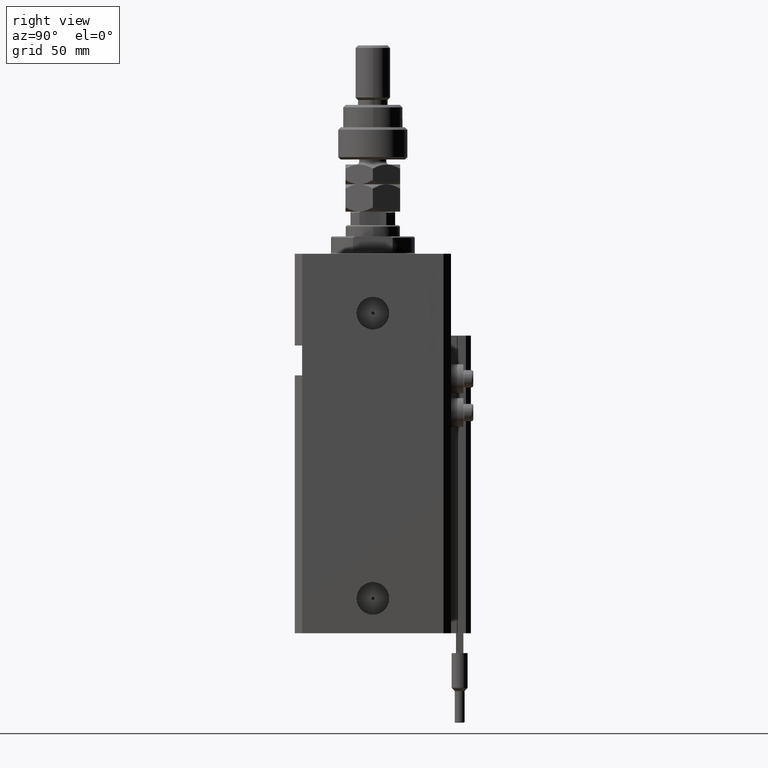
[diagram: clean part render]
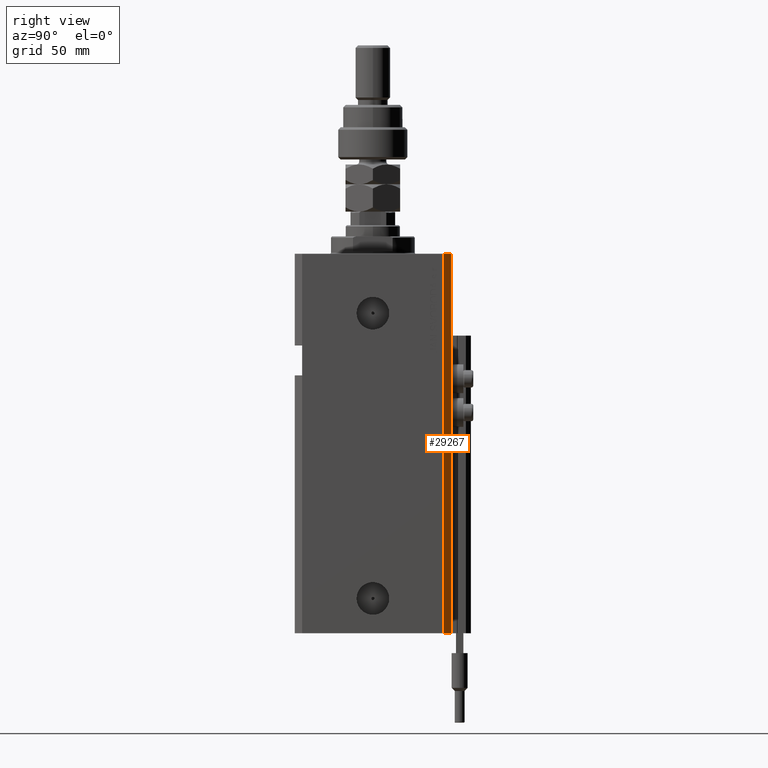
[diagram: same view with one face highlighted and labeled with its STEP entity id]
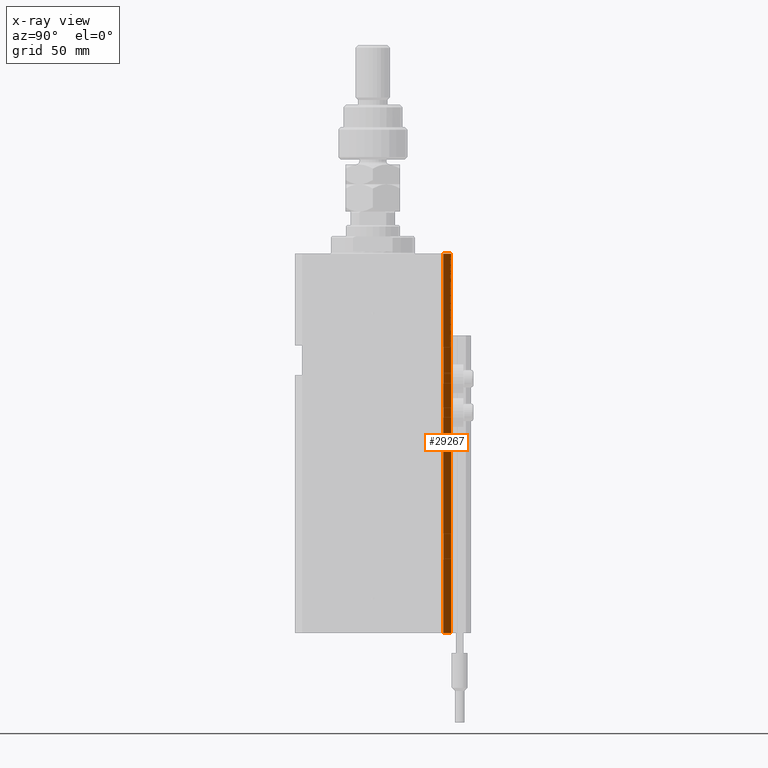
[diagram: x-ray of the same camera — body ghosted, the highlighted face saturated]
A machine part, right view. The second image highlights one B-rep face of the part: STEP entity #29267.
The next image is the same camera in x-ray: the body ghosted, the highlighted face saturated — about 0% of this face is hidden behind the body in this view.
In plain terms, the highlighted planar face has unit normal (0.7071, 0.7071, 0).
Its self-contained STEP definition (entity closure, byte-faithful):
#1 = VECTOR ( 'NONE', #50654, 1000.000000000000114 ) ;
#1105 = LINE ( 'NONE', #5272, #23757 ) ;
#2151 = EDGE_CURVE ( 'NONE', #21665, #46823, #38503, .T. ) ;
#4129 = ORIENTED_EDGE ( 'NONE', *, *, #2151, .F. ) ;
#5272 = CARTESIAN_POINT ( 'NONE',  ( 39.50000000000056843, 31.50000000000000000, -153.0000000000000000 ) ) ;
#5530 = DIRECTION ( 'NONE',  ( 0.000000000000000000, 0.000000000000000000, 1.000000000000000000 ) ) ;
#7805 = DIRECTION ( 'NONE',  ( -0.7071067811865356934, 0.7071067811865594521, 0.000000000000000000 ) ) ;
#8856 = PLANE ( 'NONE',  #45806 ) ;
#11457 = ORIENTED_EDGE ( 'NONE', *, *, #41761, .T. ) ;
#14141 = ORIENTED_EDGE ( 'NONE', *, *, #44660, .F. ) ;
#14150 = CARTESIAN_POINT ( 'NONE',  ( 42.50000000000051870, 28.49999999999995381, 0.000000000000000000 ) ) ;
#15685 = CARTESIAN_POINT ( 'NONE',  ( 42.50000000000051870, 28.49999999999995381, -153.0000000000000000 ) ) ;
#19160 = CARTESIAN_POINT ( 'NONE',  ( 42.50000000000051870, 28.49999999999995381, -153.0000000000000000 ) ) ;
#21665 = VERTEX_POINT ( 'NONE', #37143 ) ;
#21887 = VECTOR ( 'NONE', #42452, 1000.000000000000000 ) ;
#22798 = CARTESIAN_POINT ( 'NONE',  ( 39.50000000000056843, 31.50000000000000000, 0.000000000000000000 ) ) ;
#22818 = CARTESIAN_POINT ( 'NONE',  ( 39.50000000000056843, 31.50000000000000000, -153.0000000000000000 ) ) ;
#23757 = VECTOR ( 'NONE', #5530, 1000.000000000000000 ) ;
#26627 = VERTEX_POINT ( 'NONE', #46923 ) ;
#26849 = CARTESIAN_POINT ( 'NONE',  ( 42.50000000000051870, 28.49999999999995381, -153.0000000000000000 ) ) ;
#28511 = DIRECTION ( 'NONE',  ( 0.7071067811865594521, 0.7071067811865356934, -0.000000000000000000 ) ) ;
#28556 = ORIENTED_EDGE ( 'NONE', *, *, #51711, .T. ) ;
#29267 = ADVANCED_FACE ( 'NONE', ( #31663 ), #8856, .T. ) ;
#31663 = FACE_OUTER_BOUND ( 'NONE', #33961, .T. ) ;
#33961 = EDGE_LOOP ( 'NONE', ( #4129, #14141, #11457, #28556 ) ) ;
#34434 = LINE ( 'NONE', #26849, #1 ) ;
#37143 = CARTESIAN_POINT ( 'NONE',  ( 42.50000000000051870, 28.49999999999995381, 0.000000000000000000 ) ) ;
#38503 = LINE ( 'NONE', #14150, #47918 ) ;
#41761 = EDGE_CURVE ( 'NONE', #26627, #43809, #34434, .T. ) ;
#42452 = DIRECTION ( 'NONE',  ( 0.000000000000000000, 0.000000000000000000, 1.000000000000000000 ) ) ;
#43809 = VERTEX_POINT ( 'NONE', #22818 ) ;
#44660 = EDGE_CURVE ( 'NONE', #26627, #21665, #51084, .T. ) ;
#45806 = AXIS2_PLACEMENT_3D ( 'NONE', #15685, #28511, #7805 ) ;
#46598 = DIRECTION ( 'NONE',  ( -0.7071067811865356934, 0.7071067811865594521, 0.000000000000000000 ) ) ;
#46823 = VERTEX_POINT ( 'NONE', #22798 ) ;
#46923 = CARTESIAN_POINT ( 'NONE',  ( 42.50000000000051870, 28.49999999999995381, -153.0000000000000000 ) ) ;
#47918 = VECTOR ( 'NONE', #46598, 1000.000000000000114 ) ;
#50654 = DIRECTION ( 'NONE',  ( -0.7071067811865356934, 0.7071067811865594521, 0.000000000000000000 ) ) ;
#51084 = LINE ( 'NONE', #19160, #21887 ) ;
#51711 = EDGE_CURVE ( 'NONE', #43809, #46823, #1105, .T. ) ;